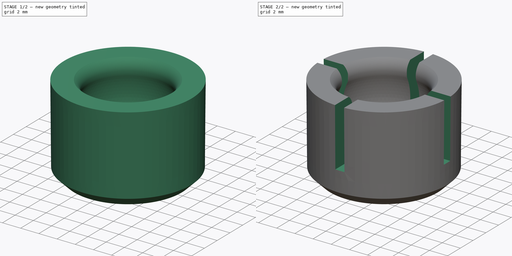
[diagram: build sequence overview — one tinted view per stage of 2, left to right]
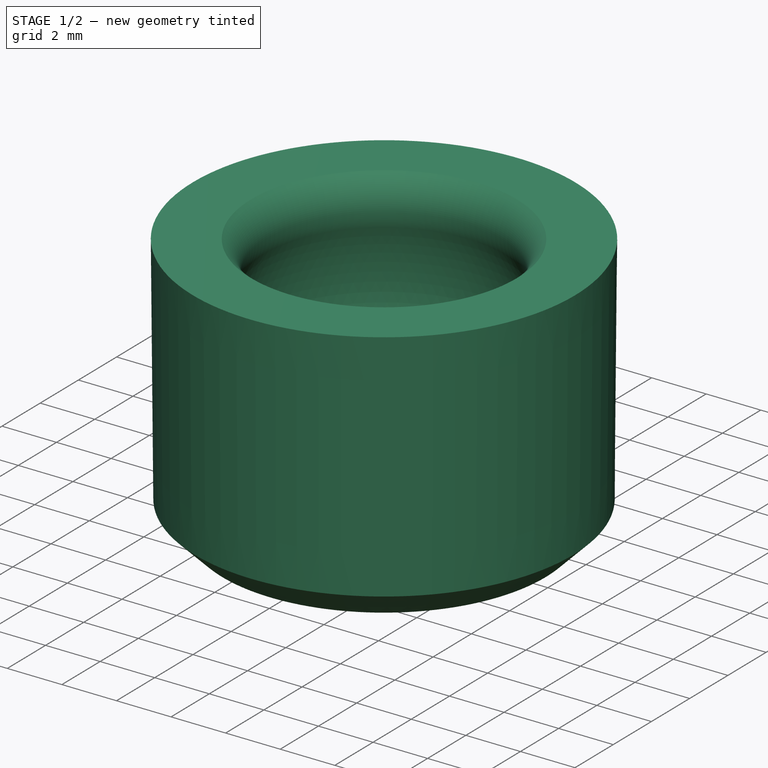
[diagram: stage 1 of 2 — iso view after this stage's code; geometry added in this stage tinted green]
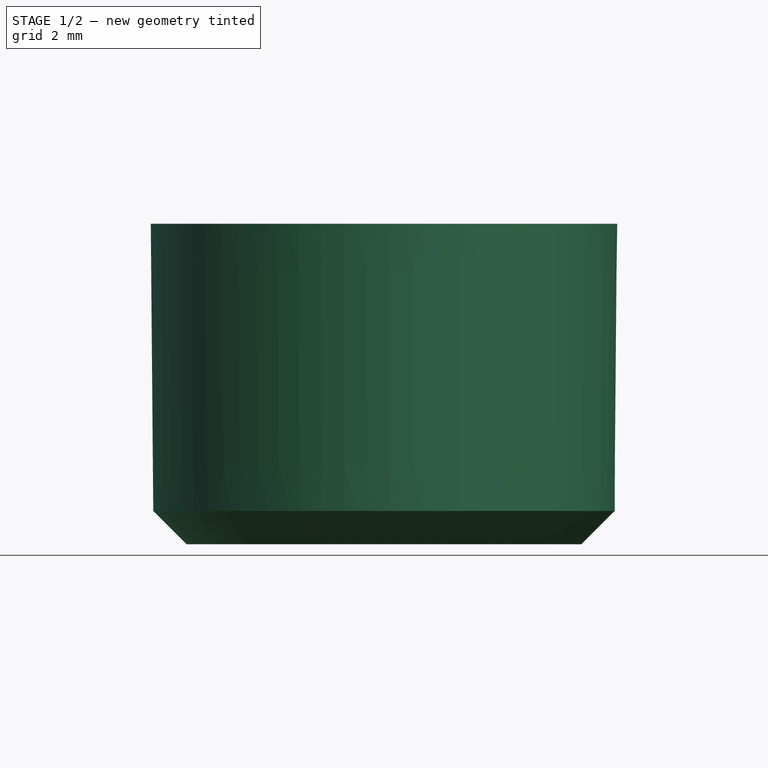
[diagram: stage 1 of 2 — front view after this stage's code; geometry added in this stage tinted green]
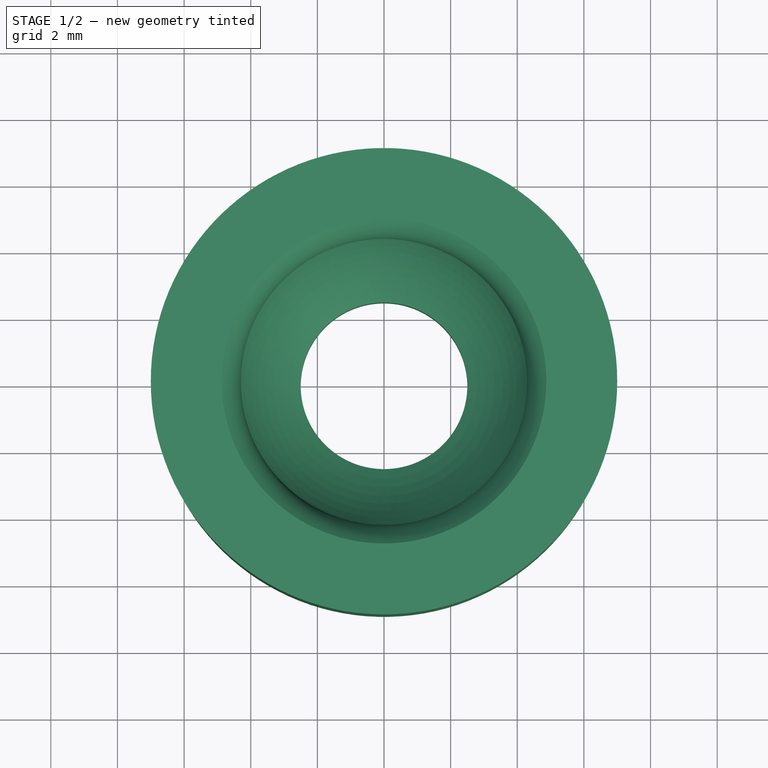
[diagram: stage 1 of 2 — top view after this stage's code; geometry added in this stage tinted green]
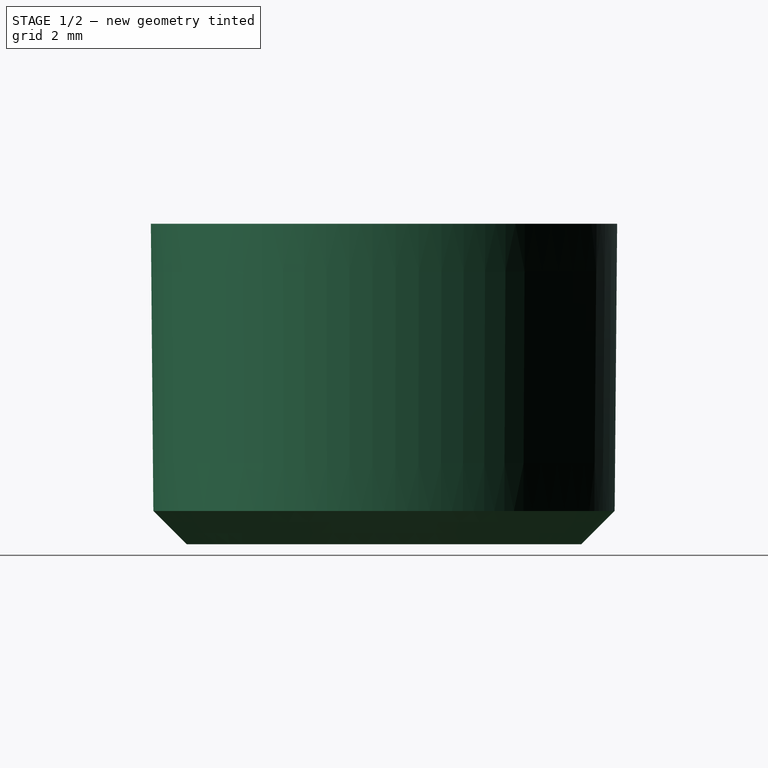
[diagram: stage 1 of 2 — right view after this stage's code; geometry added in this stage tinted green]
FCSTD DOCUMENT  (FreeCAD 1.0R39319 (Git))
Label: M56_pivot_bushing
License: All rights reserved
LicenseURL: https://en.wikipedia.org/wiki/All_rights_reserved
objects: Sketcher::SketchObject×2, Spreadsheet::Sheet×1, PartDesign::Revolution×1, PartDesign::Pocket×1, PartDesign::Body×1
note: 11 computed .brp shape members not serialized (recipe doc carries the construction recipe); baked Part::Feature solids carry a one-line shape summary decoded from their .brp

FEATURE [Spreadsheet::Sheet] Spreadsheet  label="meas"
  cells = A1='od; B1(od)=13.85; C1='Outer Diameter; A2='id; B2(id)=10; C2='Inner Diameter; A3='len; B3(len)=9.62; C3='Length; A4='bd; B4(bd)=9.74; C4='Ball diameter; A5='offs; B5(offs)=0; C5='ball offset; A6='bt; B6(bt)=1; C6='bottom thickness; A7='hd; B7(hd)=5; C7='hole diameter
FEATURE [Sketcher::SketchObject] Sketch001
  ArcFitTolerance = 1e-06
  FullyConstrained = true
  MakeInternals = false
  MapMode = 5
  Placement = pos=(0,0,0) rot=(1,0,0;1.5708rad)
  expr: Constraints[0] = <<meas>>.od / 2
  expr: Constraints[10] = <<meas>>.hd / 2
  expr: Constraints[16] = <<meas>>.len
  expr: Constraints[3] = <<meas>>.bd
  expr: Constraints[4] = <<meas>>.bd / 2 + <<meas>>.bt
  sketch-geometry (11):
    g0: ArcOfCircle CenterX=0 CenterY=5.87 CenterZ=0 NormalX=0 NormalY=0 NormalZ=1 AngleXU=0 Radius=4.87 StartAngle=2.7101 EndAngle=4.17331
    g1: LineSegment StartX=-5.925 StartY=0 StartZ=0 EndX=-2.5 EndY=0 EndZ=0
    g2: LineSegment StartX=-7 StartY=9.62 StartZ=0 EndX=-4.87 EndY=9.62 EndZ=0
    g3: LineSegment StartX=-2.5 StartY=0 StartZ=0 EndX=-2.5 EndY=1.69066 EndZ=0
    g4: LineSegment StartX=-4.87 StartY=9.62 StartZ=0 EndX=-4.7934 EndY=9.55572 EndZ=0
    g5: LineSegment [constr] StartX=-4.87 StartY=9.62 StartZ=0 EndX=-4.87 EndY=0 EndZ=0
    g6: LineSegment StartX=-6.925 StartY=1 StartZ=0 EndX=-5.925 EndY=0 EndZ=0
    g7: LineSegment [constr] StartX=-5.925 StartY=0 StartZ=0 EndX=-5.925 EndY=1 EndZ=0
    g8: LineSegment [constr] StartX=-5.925 StartY=1 StartZ=0 EndX=-6.925 EndY=1 EndZ=0
    g9: ArcOfCircle CenterX=-5.68841 CenterY=8.48908 CenterZ=0 NormalX=0 NormalY=0 NormalZ=1 AngleXU=0 Radius=1.3924 StartAngle=5.8517 EndAngle=7.15585
    g10: LineSegment StartX=-6.925 StartY=1 StartZ=0 EndX=-7 EndY=9.62 EndZ=0
  constraints (32):
    c: DistanceX(g6,g-1) = 6.925
    c: PointOnObject(g0,g-2)
    c: Horizontal(g2)
    c: Diameter(g0) = 9.74
    c: DistanceY(g-1,g0) = 5.87
    c: Coincident(g3,g1)
    c: Vertical(g3)
    c: Coincident(g3,g0)
    c: Coincident(g4,g2)
    c: Horizontal(g1)
    c: DistanceX(g1,g-1) = 2.5
    c: Coincident(g5,g2)
    c: PointOnObject(g5,g1)
    c: Vertical(g5)
    c: Tangent(g5,g0)
    c: PointOnObject(g1,g-1)
    c: DistanceY(g-1,g2) = 9.62
    c: Coincident(g6,g1)
    c: Coincident(g7,g1)
    c: Vertical(g7)
    c: Coincident(g8,g7)
    c: Horizontal(g8)
    c: Equal(g8,g7)
    c: DistanceY(g7,g7) = 1
    c: Tangent(g0,g9) = 1.5708
    c: Tangent(g4,g9) = 1.5708
    c: Angle(g2,g4) = 2.44346
    c: Distance(g4) = 0.1
    c: Coincident(g10,g6)
    c: Coincident(g10,g2)
    c: DistanceX(g2,g-1) = 7
    c: Coincident(g8,g6)
FEATURE [PartDesign::Revolution] Revolution
  Angle = 360
  Angle2 = 60
  Axis = (0,0,1)
  Base = (0,0,0)
  Placement = pos=(0,0,0) rot=(1,0,0;1.5708rad)
  Profile = -> Sketch001
  ReferenceAxis = -> Sketch001 [V_Axis]
  Refine = true
  Suppressed = false
  Type = 0
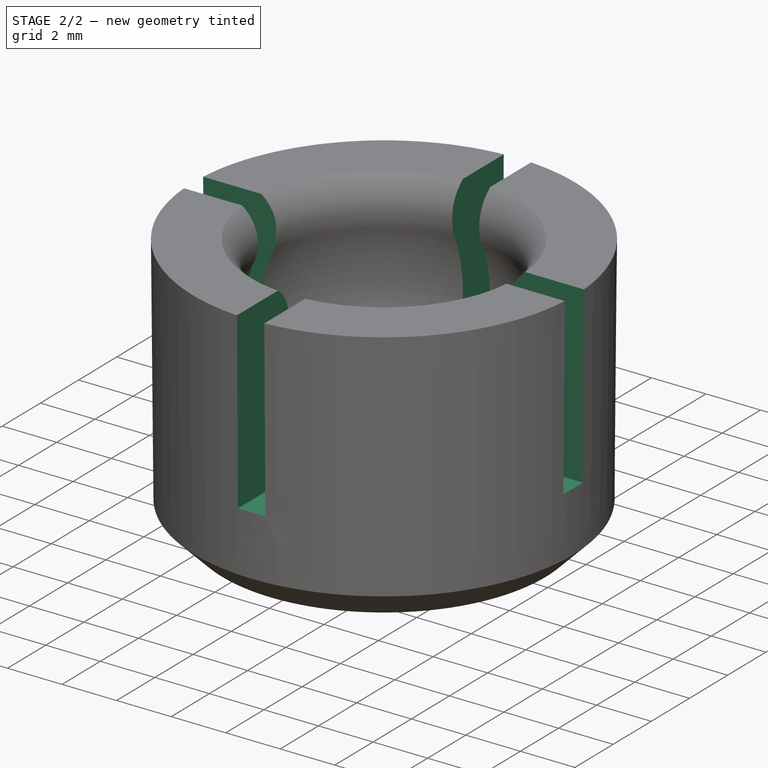
[diagram: stage 2 of 2 — iso view after this stage's code; geometry added in this stage tinted green]
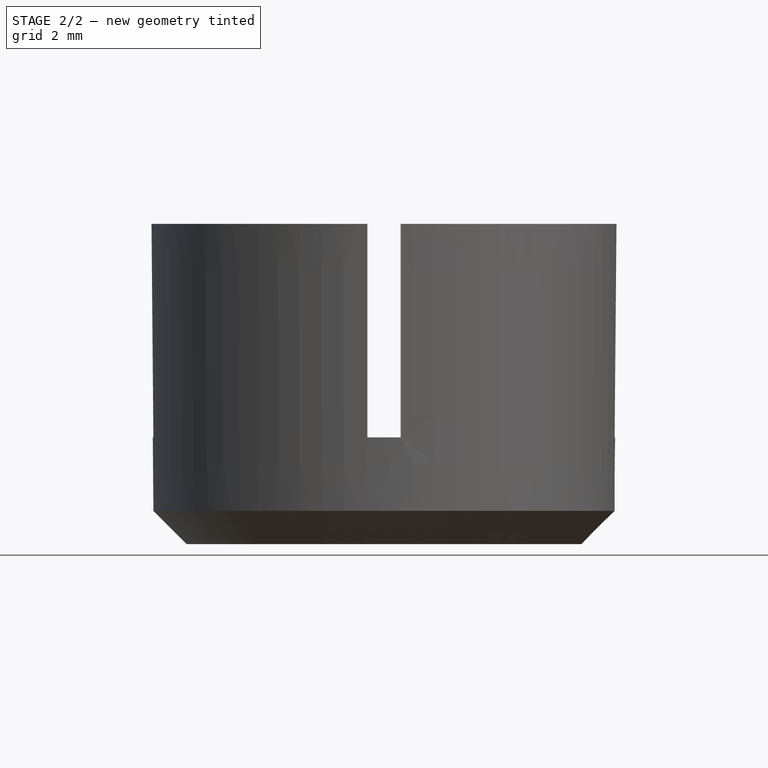
[diagram: stage 2 of 2 — front view after this stage's code; geometry added in this stage tinted green]
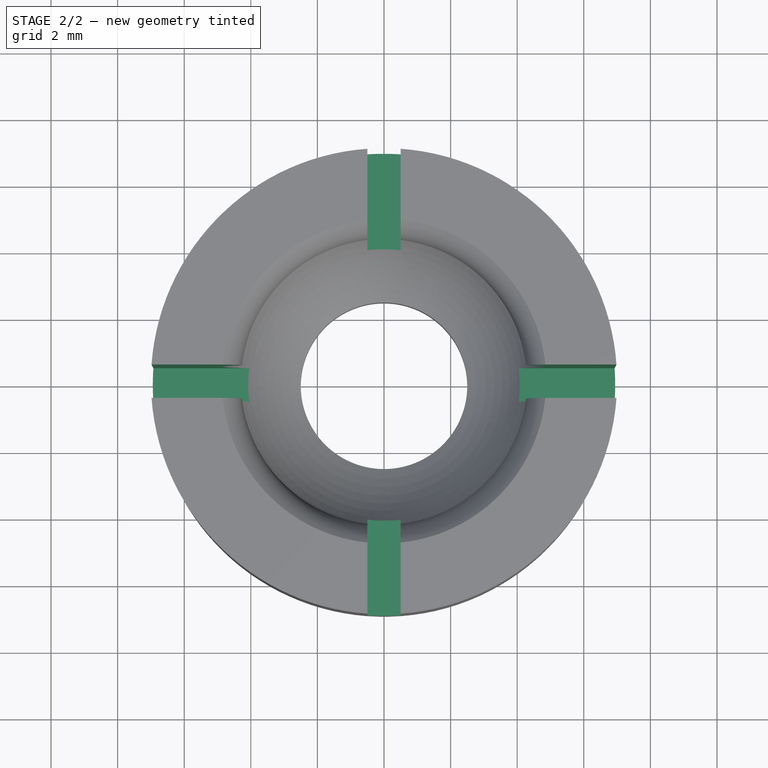
[diagram: stage 2 of 2 — top view after this stage's code; geometry added in this stage tinted green]
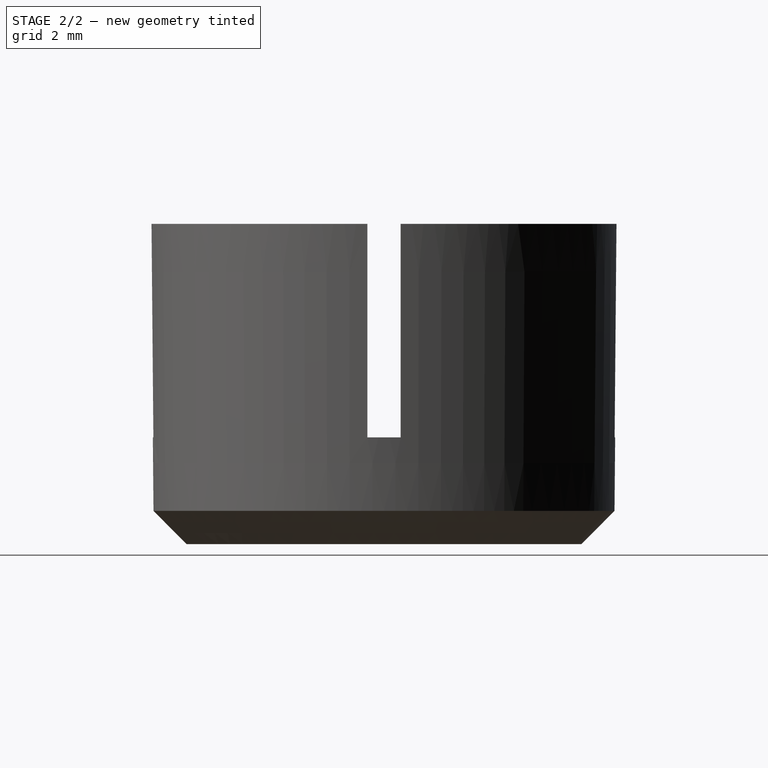
[diagram: stage 2 of 2 — right view after this stage's code; geometry added in this stage tinted green]
FEATURE [Sketcher::SketchObject] Sketch
  ArcFitTolerance = 1e-06
  AttachmentSupport = -> [Revolution]
  FullyConstrained = true
  MakeInternals = false
  MapMode = 5
  Placement = pos=(0,-3.2e-15,9.62) rot=(0,0,1;3.14159rad)
  expr: Constraints[42] = <<meas>>.od
  sketch-geometry (16):
    g0: LineSegment StartX=-0.5 StartY=14.35 StartZ=0 EndX=-0.5 EndY=0.5 EndZ=0
    g1: LineSegment StartX=-0.5 StartY=0.5 StartZ=0 EndX=-14.35 EndY=0.5 EndZ=0
    g2: LineSegment StartX=-14.35 StartY=0.5 StartZ=0 EndX=-14.35 EndY=-0.5 EndZ=0
    g3: LineSegment StartX=-14.35 StartY=-0.5 StartZ=0 EndX=-0.5 EndY=-0.5 EndZ=0
    g4: LineSegment StartX=-0.5 StartY=-0.5 StartZ=0 EndX=-0.5 EndY=-14.35 EndZ=0
    g5: LineSegment StartX=-0.5 StartY=-14.35 StartZ=0 EndX=0.5 EndY=-14.35 EndZ=0
    g6: LineSegment StartX=0.5 StartY=-14.35 StartZ=0 EndX=0.5 EndY=-0.5 EndZ=0
    g7: LineSegment StartX=0.5 StartY=-0.5 StartZ=0 EndX=14.35 EndY=-0.5 EndZ=0
    g8: LineSegment StartX=14.35 StartY=-0.5 StartZ=0 EndX=14.35 EndY=0.5 EndZ=0
    g9: LineSegment StartX=14.35 StartY=0.5 StartZ=0 EndX=0.5 EndY=0.5 EndZ=0
    g10: LineSegment StartX=0.5 StartY=0.5 StartZ=0 EndX=0.5 EndY=14.35 EndZ=0
    g11: LineSegment StartX=0.5 StartY=14.35 StartZ=0 EndX=-0.5 EndY=14.35 EndZ=0
    g12: LineSegment [constr] StartX=-0.5 StartY=0.5 StartZ=0 EndX=0.5 EndY=-0.5 EndZ=0
    g13: LineSegment [constr] StartX=-0.5 StartY=-0.5 StartZ=0 EndX=0.5 EndY=0.5 EndZ=0
    g14: LineSegment [constr] StartX=0.5 StartY=-0.5 StartZ=0 EndX=0.5 EndY=0.5 EndZ=0
    g15: LineSegment [constr] StartX=-0.5 StartY=-0.5 StartZ=0 EndX=0.5 EndY=-0.5 EndZ=0
  constraints (44):
    c: Vertical(g0)
    c: Coincident(g1,g0)
    c: Horizontal(g1)
    c: Coincident(g2,g1)
    c: Vertical(g2)
    c: Coincident(g3,g2)
    c: Horizontal(g3)
    c: Coincident(g4,g3)
    c: Vertical(g4)
    c: Coincident(g5,g4)
    c: Horizontal(g5)
    c: Coincident(g6,g5)
    c: Vertical(g6)
    c: Coincident(g7,g6)
    c: Horizontal(g7)
    c: Coincident(g8,g7)
    c: Vertical(g8)
    c: Horizontal(g9)
    c: Coincident(g10,g9)
    c: Vertical(g10)
    c: Coincident(g11,g10)
    c: Coincident(g11,g0)
    c: Horizontal(g11)
    c: Coincident(g8,g9)
    c: Horizontal(g9,g0)
    c: Horizontal(g6,g3)
    c: Vertical(g3,g0)
    c: Vertical(g6,g9)
    c: Equal(g9,g6)
    c: Equal(g6,g3)
    c: Equal(g3,g0)
    c: Coincident(g12,g0)
    c: Coincident(g12,g6)
    c: Coincident(g13,g3)
    c: Coincident(g13,g9)
    c: PointOnObject(g-1,g12)
    c: PointOnObject(g-1,g13)
    c: Coincident(g14,g6)
    c: Coincident(g14,g9)
    c: Coincident(g15,g3)
    c: Coincident(g15,g6)
    c: Equal(g15,g14)
    c: DistanceX(g7,g7) = 13.85
    c: DistanceY(g6,g9) = 1
FEATURE [PartDesign::Pocket] Pocket
  BaseFeature = -> Revolution
  Direction = (0,0,-1)
  Length = 6.41333
  Length2 = 5
  Placement = pos=(0,0,0) rot=(1,0,0;1.5708rad)
  Profile = -> Sketch
  ReferenceAxis = -> Sketch [N_Axis]
  Refine = true
  Suppressed = false
  Type = 0
  expr: Length = <<meas>>.len / 3 * 2
FEATURE [PartDesign::Body] Body001  label="Bushing_V3"
  AllowCompound = false
  Group = -> [Sketch001,Revolution,Sketch,Pocket]
  Origin = -> Origin001
  Tip = -> Pocket
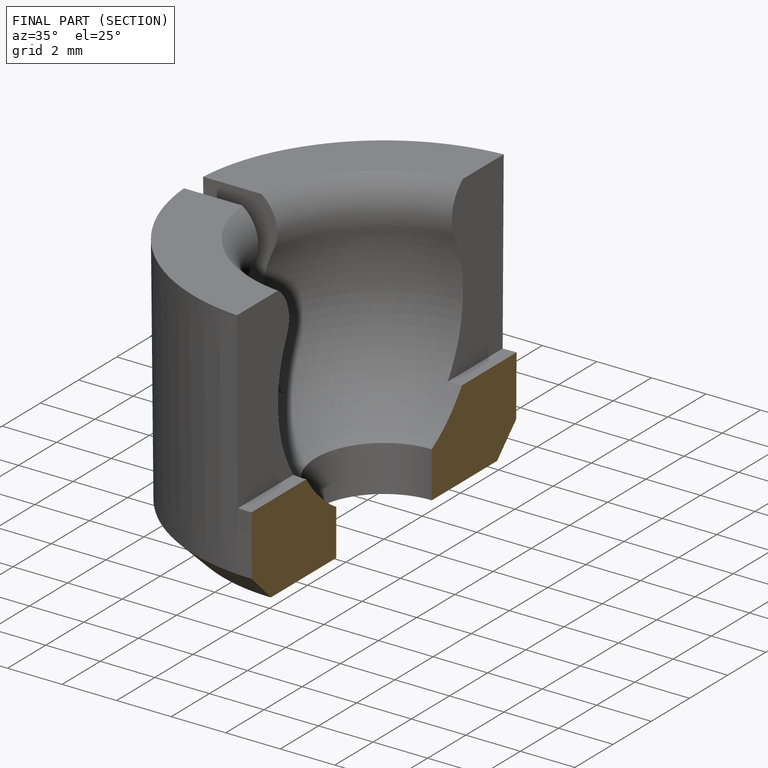
[diagram: finished part — half-section view (interior)]
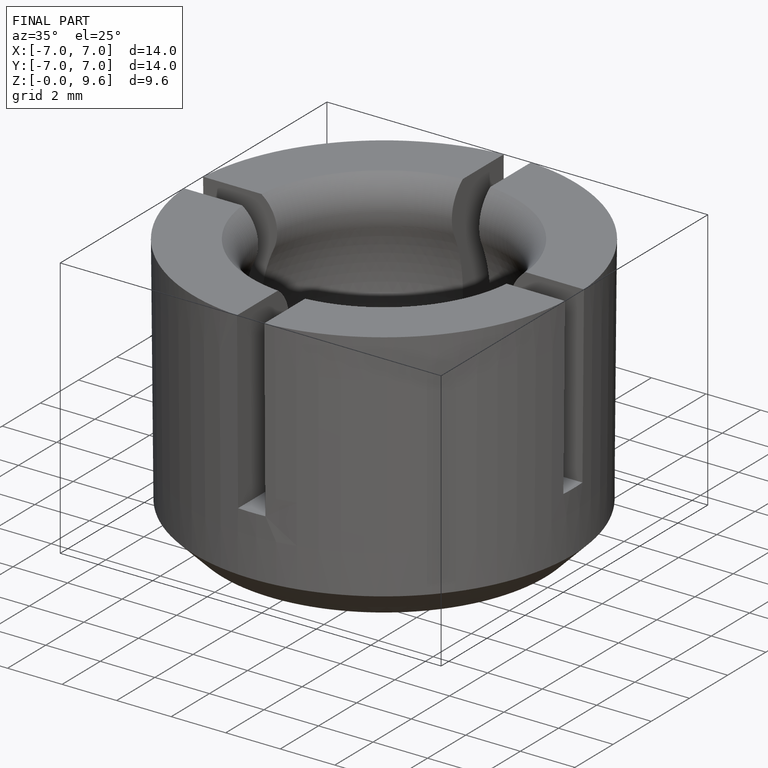
[diagram: finished part — iso view with bounding-box wireframe]
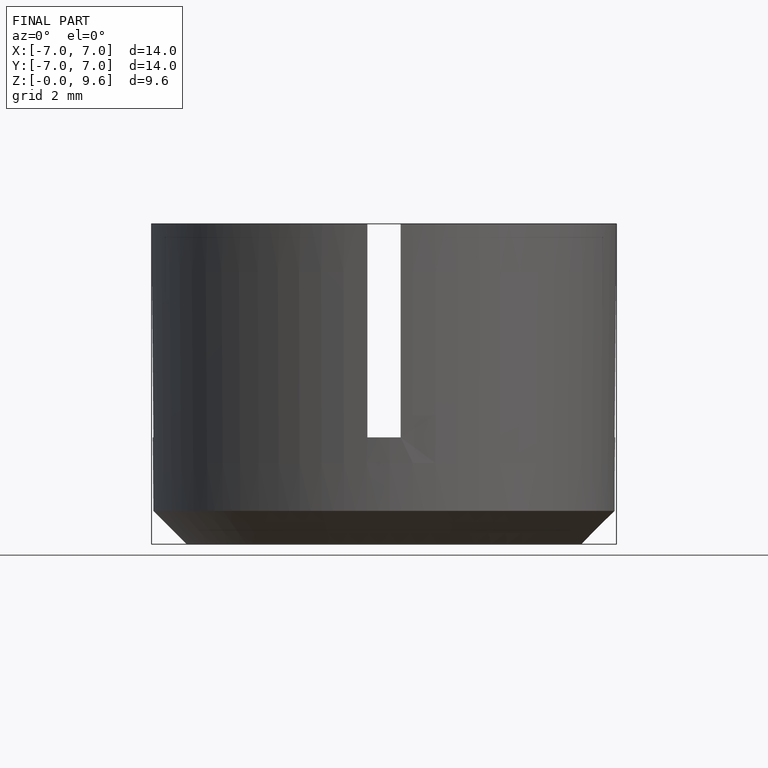
[diagram: finished part — front view with bounding-box wireframe]
